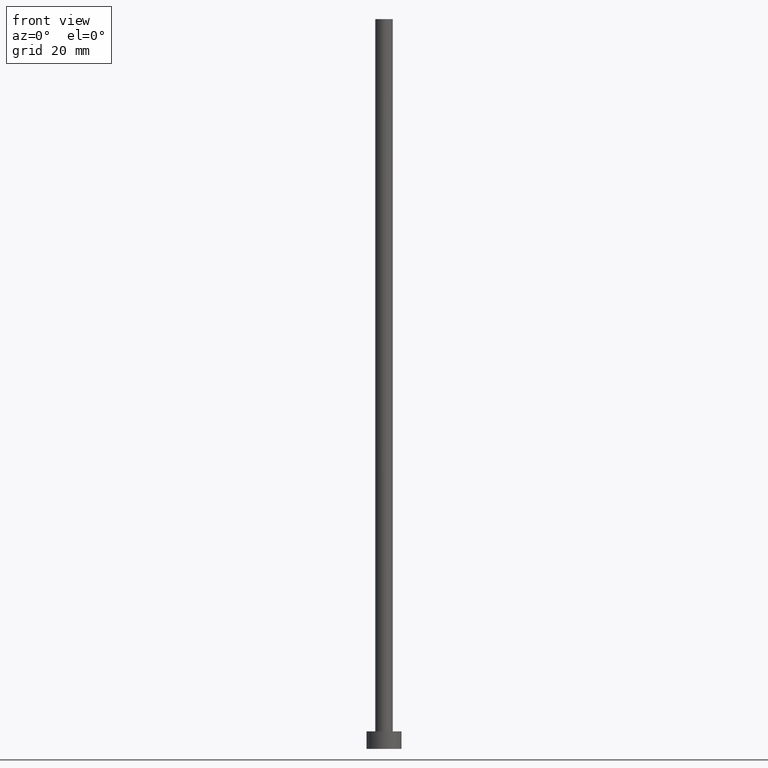
[diagram: clean part render]
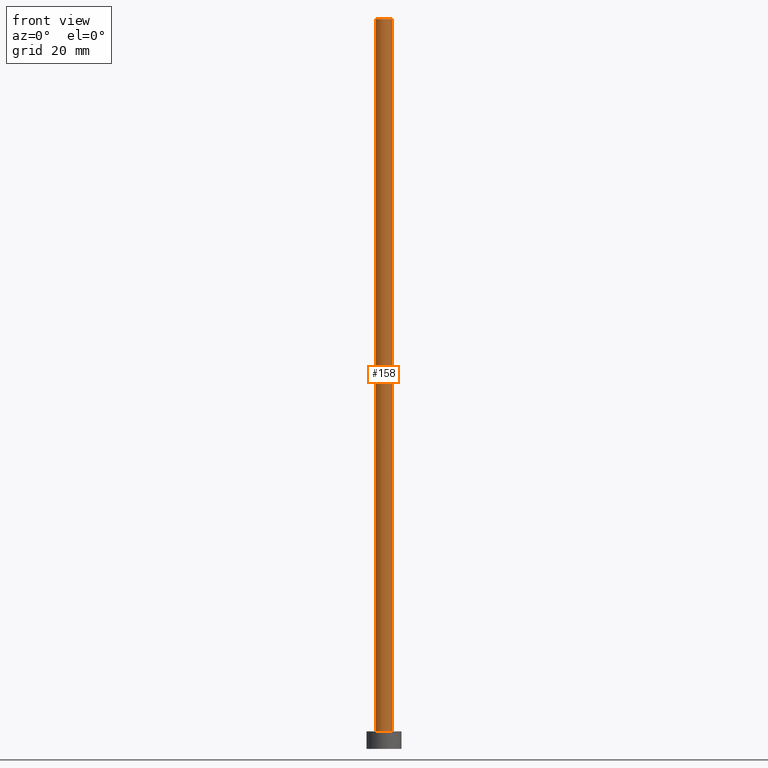
[diagram: same view with one face highlighted and labeled with its STEP entity id]
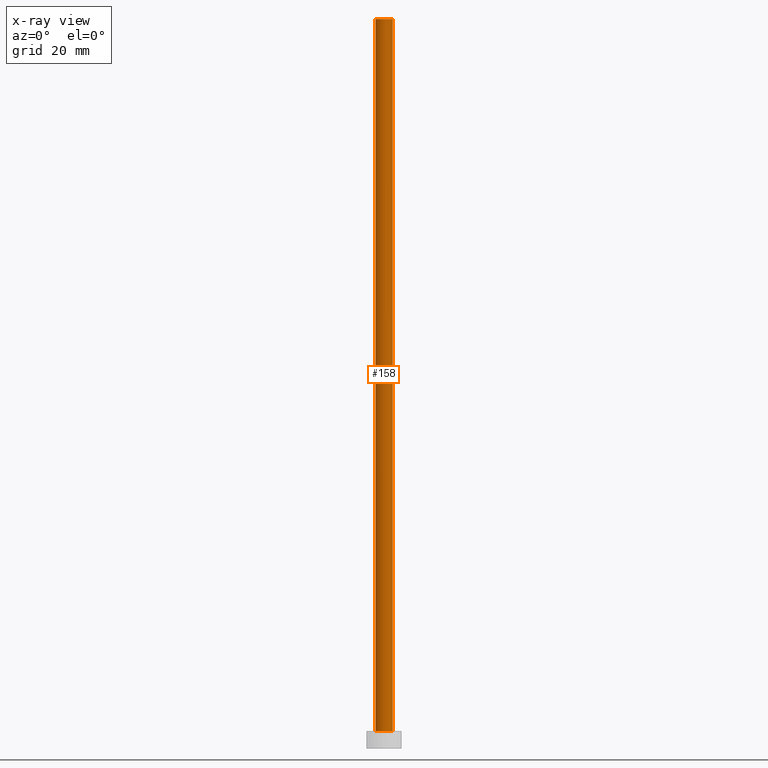
[diagram: x-ray of the same camera — body ghosted, the highlighted face saturated]
A machine part, front view. The second image highlights one B-rep face of the part: STEP entity #158.
The next image is the same camera in x-ray: the body ghosted, the highlighted face saturated — about 0% of this face is hidden behind the body in this view.
In plain terms, the highlighted cylindrical surface (edge-blend (fillet) strip) has radius 1.5 mm, axis along (-0, -0, -1).
Its self-contained STEP definition (entity closure, byte-faithful):
#11 = ORIENTED_EDGE ( 'NONE', *, *, #229, .T. ) ;
#13 = VECTOR ( 'NONE', #228, 1000.000000000000000 ) ;
#29 = CARTESIAN_POINT ( 'NONE',  ( 0.000000000000000000, 0.000000000000000000, 3.000000000000000000 ) ) ;
#31 = DIRECTION ( 'NONE',  ( 1.000000000000000000, 0.000000000000000000, 0.000000000000000000 ) ) ;
#41 = VERTEX_POINT ( 'NONE', #58 ) ;
#44 = LINE ( 'NONE', #169, #133 ) ;
#47 = DIRECTION ( 'NONE',  ( 0.000000000000000000, 0.000000000000000000, 1.000000000000000000 ) ) ;
#48 = CARTESIAN_POINT ( 'NONE',  ( 1.500000000000000222, 1.836970198721029934E-16, 3.000000000000000000 ) ) ;
#55 = VERTEX_POINT ( 'NONE', #48 ) ;
#58 = CARTESIAN_POINT ( 'NONE',  ( -1.500000000000000222, 0.000000000000000000, 125.0000000000000000 ) ) ;
#64 = CYLINDRICAL_SURFACE ( 'NONE', #199, 1.500000000000000222 ) ;
#72 = EDGE_CURVE ( 'NONE', #41, #234, #177, .T. ) ;
#75 = ORIENTED_EDGE ( 'NONE', *, *, #190, .T. ) ;
#77 = CARTESIAN_POINT ( 'NONE',  ( -1.500000000000000222, 0.000000000000000000, 3.000000000000000000 ) ) ;
#78 = DIRECTION ( 'NONE',  ( -0.000000000000000000, -0.000000000000000000, -1.000000000000000000 ) ) ;
#82 = DIRECTION ( 'NONE',  ( -1.000000000000000000, 0.000000000000000000, 0.000000000000000000 ) ) ;
#89 = AXIS2_PLACEMENT_3D ( 'NONE', #29, #202, #31 ) ;
#90 = LINE ( 'NONE', #114, #13 ) ;
#107 = CARTESIAN_POINT ( 'NONE',  ( 0.000000000000000000, 0.000000000000000000, 125.0000000000000000 ) ) ;
#110 = VERTEX_POINT ( 'NONE', #77 ) ;
#114 = CARTESIAN_POINT ( 'NONE',  ( 1.500000000000000222, 1.836970198721029934E-16, 125.0000000000000000 ) ) ;
#118 = ORIENTED_EDGE ( 'NONE', *, *, #248, .F. ) ;
#133 = VECTOR ( 'NONE', #240, 1000.000000000000000 ) ;
#141 = CIRCLE ( 'NONE', #89, 1.500000000000000222 ) ;
#147 = FACE_OUTER_BOUND ( 'NONE', #215, .T. ) ;
#158 = ADVANCED_FACE ( 'NONE', ( #147 ), #64, .T. ) ;
#165 = ORIENTED_EDGE ( 'NONE', *, *, #72, .F. ) ;
#169 = CARTESIAN_POINT ( 'NONE',  ( -1.500000000000000222, 0.000000000000000000, 125.0000000000000000 ) ) ;
#177 = CIRCLE ( 'NONE', #203, 1.500000000000000222 ) ;
#186 = CARTESIAN_POINT ( 'NONE',  ( 1.500000000000000222, 1.836970198721029934E-16, 125.0000000000000000 ) ) ;
#190 = EDGE_CURVE ( 'NONE', #41, #110, #44, .T. ) ;
#195 = CARTESIAN_POINT ( 'NONE',  ( 0.000000000000000000, 0.000000000000000000, 125.0000000000000000 ) ) ;
#196 = DIRECTION ( 'NONE',  ( 1.000000000000000000, 0.000000000000000000, 0.000000000000000000 ) ) ;
#199 = AXIS2_PLACEMENT_3D ( 'NONE', #195, #78, #82 ) ;
#202 = DIRECTION ( 'NONE',  ( 0.000000000000000000, 0.000000000000000000, 1.000000000000000000 ) ) ;
#203 = AXIS2_PLACEMENT_3D ( 'NONE', #107, #47, #196 ) ;
#215 = EDGE_LOOP ( 'NONE', ( #118, #165, #75, #11 ) ) ;
#228 = DIRECTION ( 'NONE',  ( -0.000000000000000000, -0.000000000000000000, -1.000000000000000000 ) ) ;
#229 = EDGE_CURVE ( 'NONE', #110, #55, #141, .T. ) ;
#234 = VERTEX_POINT ( 'NONE', #186 ) ;
#240 = DIRECTION ( 'NONE',  ( -0.000000000000000000, -0.000000000000000000, -1.000000000000000000 ) ) ;
#248 = EDGE_CURVE ( 'NONE', #234, #55, #90, .T. ) ;